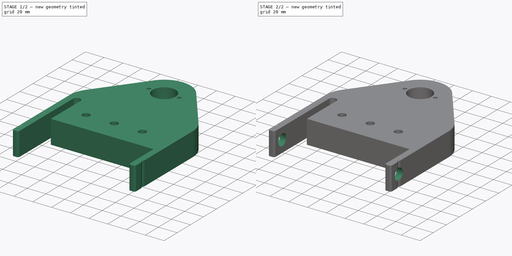
[diagram: build sequence overview — one tinted view per stage of 2, left to right]
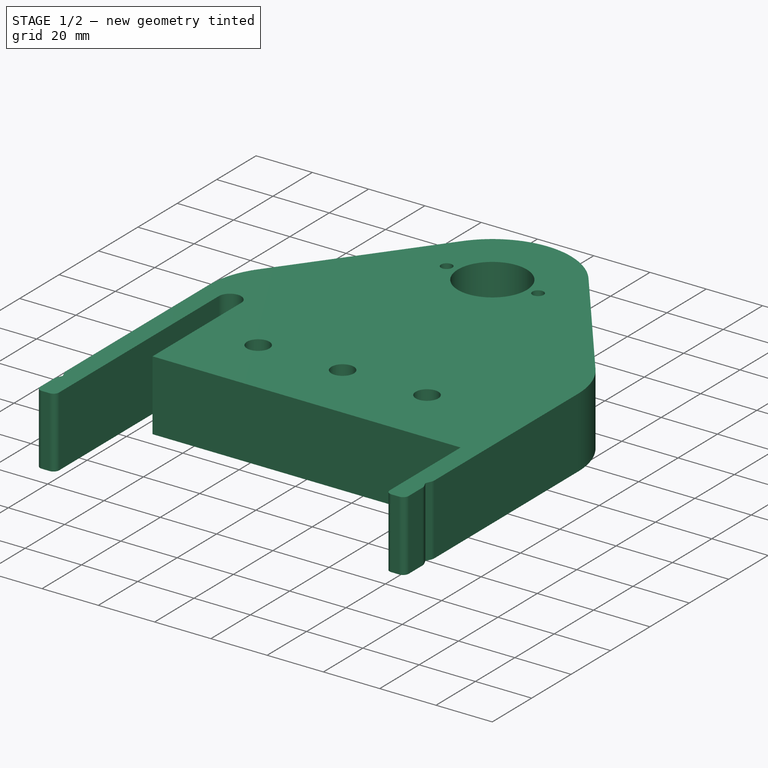
[diagram: stage 1 of 2 — iso view after this stage's code; geometry added in this stage tinted green]
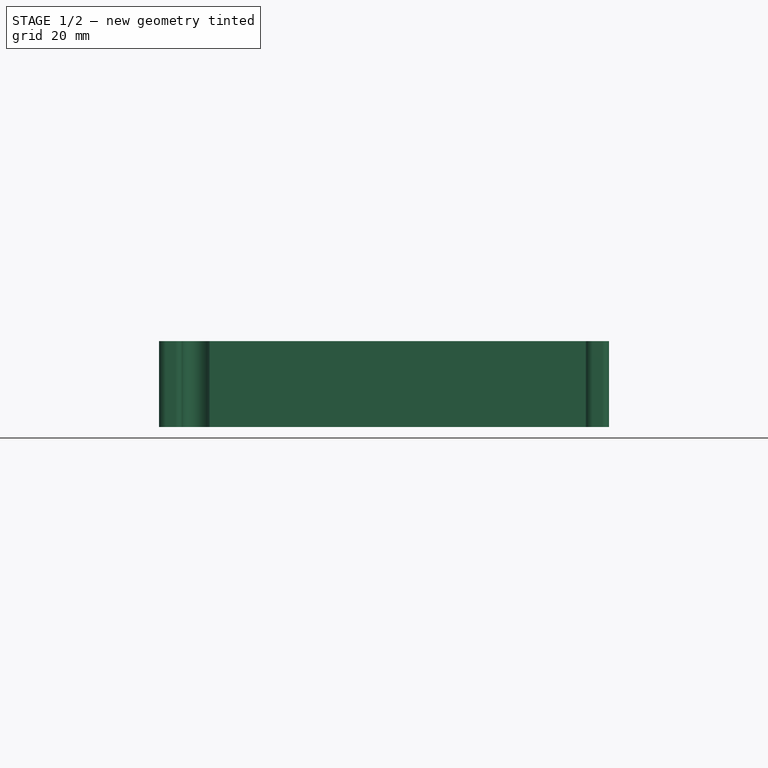
[diagram: stage 1 of 2 — front view after this stage's code; geometry added in this stage tinted green]
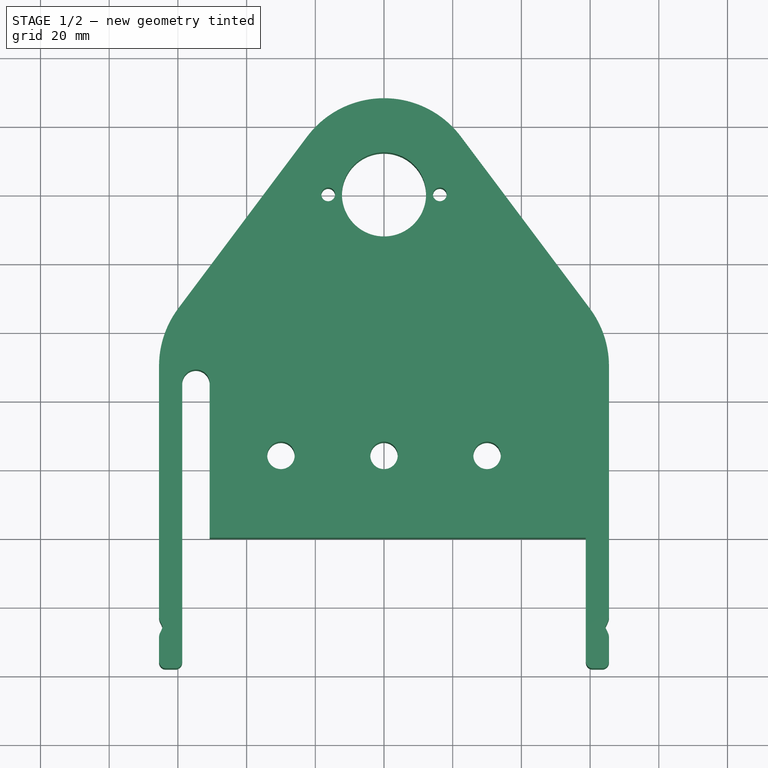
[diagram: stage 1 of 2 — top view after this stage's code; geometry added in this stage tinted green]
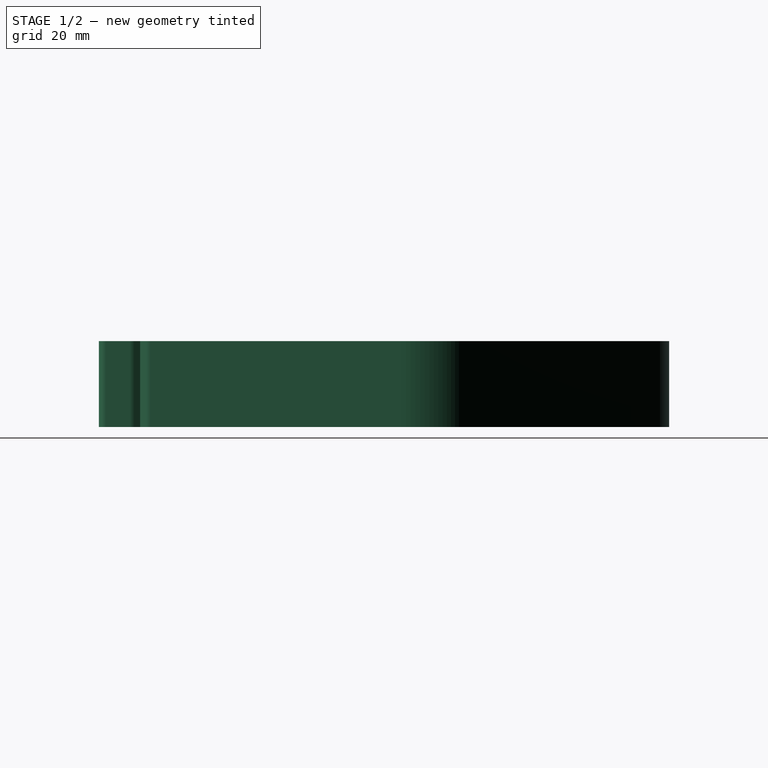
[diagram: stage 1 of 2 — right view after this stage's code; geometry added in this stage tinted green]
FCSTD DOCUMENT  (FreeCAD 0.19R24267 +99 (Git))
Label: V2 Centre steady
License: All rights reserved
LicenseURL: http://en.wikipedia.org/wiki/All_rights_reserved
objects: Sketcher::SketchObject×2, PartDesign::Pad×1, PartDesign::Pocket×1, PartDesign::Body×1
note: 7 computed .brp shape members not serialized (recipe doc carries the construction recipe); baked Part::Feature solids carry a one-line shape summary decoded from their .brp

FEATURE [Sketcher::SketchObject] Sketch
  FullyConstrained = true
  MapMode = 5
  Support = -> [XY_Plane]
  sketch-geometry (56):
    g0: LineSegment StartX=-50.75 StartY=0 StartZ=0 EndX=58.75 EndY=0 EndZ=0
    g1: Circle CenterX=0 CenterY=100 CenterZ=0 NormalX=0 NormalY=0 NormalZ=1 AngleXU=0 Radius=12.25
    g2: LineSegment StartX=-65.5 StartY=0 StartZ=0 EndX=-65.5 EndY=-23 EndZ=0
    g3: LineSegment StartX=65.5 StartY=0 StartZ=0 EndX=65.5 EndY=-23 EndZ=0
    g4: LineSegment StartX=-63.5 StartY=-38 StartZ=0 EndX=-60.75 EndY=-38 EndZ=0
    g5: LineSegment StartX=-58.75 StartY=0 StartZ=0 EndX=-58.75 EndY=-36 EndZ=0
    g6: LineSegment StartX=63.5 StartY=-38 StartZ=0 EndX=60.75 EndY=-38 EndZ=0
    g7: LineSegment StartX=58.75 StartY=0 StartZ=0 EndX=58.75 EndY=-36 EndZ=0
    g8: LineSegment StartX=-22.4 StartY=116.8 StartZ=0 EndX=-59.9 EndY=66.8 EndZ=0
    g9: LineSegment StartX=22.4 StartY=116.8 StartZ=0 EndX=59.9 EndY=66.8 EndZ=0
    g10: LineSegment StartX=-60.75 StartY=-38 StartZ=0 EndX=60.75 EndY=-38 EndZ=0
    g11: LineSegment StartX=-65.5 StartY=0 StartZ=0 EndX=-65.5 EndY=50 EndZ=0
    g12: LineSegment StartX=65.5 StartY=50 StartZ=0 EndX=65.5 EndY=0 EndZ=0
    g13: LineSegment StartX=-58.75 StartY=0 StartZ=0 EndX=-58.75 EndY=45 EndZ=0
    g14: LineSegment StartX=-50.75 StartY=45 StartZ=0 EndX=-50.75 EndY=0 EndZ=0
    g15: ArcOfCircle CenterX=0 CenterY=100 CenterZ=0 NormalX=0 NormalY=0 NormalZ=1 AngleXU=0 Radius=28 StartAngle=0.643501 EndAngle=2.49809
    g16: ArcOfCircle CenterX=-37.5 CenterY=50 CenterZ=0 NormalX=0 NormalY=0 NormalZ=1 AngleXU=0 Radius=28 StartAngle=2.49809 EndAngle=3.14159
    g17: ArcOfCircle CenterX=37.5 CenterY=50 CenterZ=0 NormalX=0 NormalY=0 NormalZ=1 AngleXU=0 Radius=28 StartAngle=0 EndAngle=0.643501
    g18: ArcOfCircle CenterX=-60.75 CenterY=-36 CenterZ=0 NormalX=0 NormalY=0 NormalZ=1 AngleXU=0 Radius=2 StartAngle=4.71239 EndAngle=6.28319
    g19: ArcOfCircle CenterX=60.75 CenterY=-36 CenterZ=0 NormalX=0 NormalY=0 NormalZ=1 AngleXU=0 Radius=2 StartAngle=3.14159 EndAngle=4.71239
    g20: ArcOfCircle CenterX=-54.75 CenterY=45 CenterZ=0 NormalX=0 NormalY=0 NormalZ=1 AngleXU=0 Radius=4 StartAngle=4e-16 EndAngle=3.14159
    g21: LineSegment StartX=-64.4112 StartY=-26 StartZ=0 EndX=64.4112 EndY=-26 EndZ=0
    g22: LineSegment StartX=-65.5 StartY=-29 StartZ=0 EndX=-65.5 EndY=-36 EndZ=0
    g23: LineSegment StartX=65.5 StartY=-29 StartZ=0 EndX=65.5 EndY=-36 EndZ=0
    g24: LineSegment StartX=-65.2189 StartY=-27.7321 StartZ=0 EndX=-64.4112 EndY=-26 EndZ=0
    g25: LineSegment StartX=-65.2189 StartY=-24.2679 StartZ=0 EndX=-64.4112 EndY=-26 EndZ=0
    g26: LineSegment StartX=65.2189 StartY=-24.2679 StartZ=0 EndX=64.4112 EndY=-26 EndZ=0
    g27: LineSegment StartX=65.2189 StartY=-27.7321 StartZ=0 EndX=64.4112 EndY=-26 EndZ=0
    g28: ArcOfCircle CenterX=-62.5 CenterY=-23 CenterZ=0 NormalX=0 NormalY=0 NormalZ=1 AngleXU=0 Radius=3 StartAngle=3.14159 EndAngle=3.57792
    g29: ArcOfCircle CenterX=-62.5 CenterY=-29 CenterZ=0 NormalX=0 NormalY=0 NormalZ=1 AngleXU=0 Radius=3 StartAngle=2.70526 EndAngle=3.14159
    g30: ArcOfCircle CenterX=62.5 CenterY=-23 CenterZ=0 NormalX=0 NormalY=0 NormalZ=1 AngleXU=0 Radius=3 StartAngle=5.84685 EndAngle=6.28319
    g31: ArcOfCircle CenterX=62.5 CenterY=-29 CenterZ=0 NormalX=0 NormalY=0 NormalZ=1 AngleXU=0 Radius=3 StartAngle=0 EndAngle=0.436332
    g32: ArcOfCircle CenterX=-63.5 CenterY=-36 CenterZ=0 NormalX=0 NormalY=0 NormalZ=1 AngleXU=0 Radius=2 StartAngle=3.14159 EndAngle=4.71239
    g33: ArcOfCircle CenterX=63.5 CenterY=-36 CenterZ=0 NormalX=0 NormalY=0 NormalZ=1 AngleXU=0 Radius=2 StartAngle=4.71239 EndAngle=6.28319
    g34: Circle CenterX=0 CenterY=100 CenterZ=0 NormalX=0 NormalY=0 NormalZ=1 AngleXU=0 Radius=20.25
    g35: Circle CenterX=16.25 CenterY=100 CenterZ=0 NormalX=0 NormalY=0 NormalZ=1 AngleXU=0 Radius=2
    g36: Circle CenterX=-16.25 CenterY=100 CenterZ=0 NormalX=0 NormalY=0 NormalZ=1 AngleXU=0 Radius=2
    g37: LineSegment StartX=0 StartY=100 StartZ=0 EndX=20.25 EndY=100 EndZ=0
    g38: LineSegment StartX=0 StartY=100 StartZ=0 EndX=-20.25 EndY=100 EndZ=0
    g39: GeomPoint X=58 Y=0 Z=0
    g40: GeomPoint X=-58 Y=0 Z=0
    g41: LineSegment StartX=-16.25 StartY=102 StartZ=0 EndX=-16.25 EndY=98 EndZ=0
    g42: LineSegment StartX=-18.25 StartY=100 StartZ=0 EndX=-14.25 EndY=100 EndZ=0
    g43: LineSegment StartX=14.25 StartY=100 StartZ=0 EndX=18.25 EndY=100 EndZ=0
    g44: LineSegment StartX=16.25 StartY=102 StartZ=0 EndX=16.25 EndY=98 EndZ=0
    g45: GeomPoint X=0 Y=-50 Z=0
    g46: Circle CenterX=0 CenterY=24 CenterZ=0 NormalX=0 NormalY=0 NormalZ=1 AngleXU=0 Radius=4
    g47: Circle CenterX=30 CenterY=24 CenterZ=0 NormalX=0 NormalY=0 NormalZ=1 AngleXU=0 Radius=4
    g48: Circle CenterX=-30 CenterY=24 CenterZ=0 NormalX=0 NormalY=0 NormalZ=1 AngleXU=0 Radius=4
    g49: LineSegment StartX=-30 StartY=24 StartZ=0 EndX=30 EndY=24 EndZ=0
    g50: LineSegment StartX=-30 StartY=28 StartZ=0 EndX=-30 EndY=20 EndZ=0
    g51: LineSegment StartX=-34 StartY=24 StartZ=0 EndX=-26 EndY=24 EndZ=0
    g52: LineSegment StartX=-4 StartY=24 StartZ=0 EndX=4 EndY=24 EndZ=0
    g53: LineSegment StartX=0 StartY=28 StartZ=0 EndX=0 EndY=20 EndZ=0
    g54: LineSegment StartX=30 StartY=28 StartZ=0 EndX=30 EndY=20 EndZ=0
    g55: LineSegment StartX=26 StartY=24 StartZ=0 EndX=34 EndY=24 EndZ=0
  constraints (154):
    c: PointOnObject(g1,g-2)
    c: PointOnObject(g2,g0)
    c: Vertical(g2)
    c: PointOnObject(g3,g0)
    c: Horizontal(g4)
    c: PointOnObject(g5,g-1)
    c: PointOnObject(g7,g-1)
    c: Vertical(g7)
    c: Vertical(g5)
    c: Horizontal(g10)
    c: Coincident(g11,g2)
    c: Coincident(g12,g3)
    c: Vertical(g12)
    c: Vertical(g11)
    c: DistanceY(g-1,g1) = 100
    c: Equal(g12,g11)
    c: Coincident(g13,g5)
    c: Vertical(g13)
    c: Vertical(g14)
    c: Tangent(g8,g15) = -1.5708
    c: Tangent(g9,g15) = 1.5708
    c: Coincident(g15,g1)
    c: Tangent(g8,g16) = -1.5708
    c: Tangent(g11,g16) = 1.5708
    c: Tangent(g9,g17) = 1.5708
    c: Tangent(g12,g17) = 1.5708
    c: Equal(g16,g17)
    c: Equal(g16,g15)
    c: Tangent(g4,g18) = -1.5708
    c: Tangent(g5,g18) = 1.5708
    c: Tangent(g7,g19) = -1.5708
    c: Tangent(g6,g19) = 1.5708
    c: Coincident(g10,g6)
    c: Coincident(g10,g4)
    c: Equal(g18,g19)
    c: Tangent(g20,g14) = 1.5708
    c: Tangent(g20,g13) = 1.5708
    c: DistanceY(g2,g11) = 50
    c: Tangent(g2,g22)
    c: Tangent(g3,g23)
    c: Symmetric(g21,g21,g-2)
    c: Coincident(g0,g7)
    c: Coincident(g24,g21)
    c: Coincident(g25,g24)
    c: Coincident(g26,g21)
    c: Coincident(g27,g26)
    c: Equal(g27,g24)
    c: Equal(g24,g25)
    c: Angle(g25,g24) = 2.26893
    c: Equal(g27,g26)
    c: Symmetric(g2,g3,g-1)
    c: Tangent(g2,g28) = -1.5708
    c: Tangent(g25,g28) = -1.5708
    c: Tangent(g24,g29) = 1.5708
    c: Tangent(g22,g29) = -1.5708
    c: Tangent(g3,g30) = 1.5708
    c: Tangent(g26,g30) = 1.5708
    c: Tangent(g27,g31) = -1.5708
    c: Tangent(g23,g31) = 1.5708
    c: Equal(g30,g31)
    c: Equal(g31,g28)
    c: Equal(g28,g29)
    c: Radius(g28) = 3
    c: DistanceY(g22,g2) = 6
    c: Coincident(g14,g0)
    c: Tangent(g22,g32) = -1.5708
    c: Tangent(g4,g32) = -1.5708
    c: Tangent(g23,g33) = 1.5708
    c: Tangent(g6,g33) = 1.5708
    c: Equal(g32,g18)
    c: Equal(g19,g33)
    c: Horizontal(g6)
    c: Vertical(g3)
    c: Radius(g18) = 2
    c: Coincident(g34,g1)
    c: Coincident(g37,g1)
    c: PointOnObject(g37,g34)
    c: Horizontal(g37)
    c: Coincident(g38,g1)
    c: PointOnObject(g38,g34)
    c: Horizontal(g38)
    c: PointOnObject(g35,g37)
    c: DistanceX(g36,g35) = 32.5
    c: Symmetric(g36,g35,g-2)
    c: Equal(g36,g35)
    c: PointOnObject(g39,g0)
    c: DistanceX(g39,g0) = 0.75
    c: DistanceX(g-1,g39) = 58
    c: DistanceX(g39,g23) = 7.5
    c: PointOnObject(g40,g-1)
    c: DistanceX(g5,g40) = 0.75
    c: DistanceX(g40,g-1) = 58
    c: DistanceX(g22,g40) = 7.5
    c: DistanceY(g2,g20) = 45
    c: Diameter(g34) = 40.5
    c: Diameter(g36) = 4
    c: Diameter(g1) = 24.5
    c: PointOnObject(g41,g36)
    c: PointOnObject(g41,g36)
    c: Vertical(g41)
    c: PointOnObject(g42,g36)
    c: PointOnObject(g42,g36)
    c: Horizontal(g42)
    c: PointOnObject(g43,g35)
    c: PointOnObject(g43,g35)
    c: PointOnObject(g44,g35)
    c: PointOnObject(g44,g35)
    c: Horizontal(g43)
    c: PointOnObject(g35,g43)
    c: Vertical(g44)
    c: PointOnObject(g35,g44)
    c: PointOnObject(g36,g42)
    c: PointOnObject(g36,g41)
    c: Diameter(g20) = 8
    c: PointOnObject(g45,g-2)
    c: DistanceY(g45,g-1) = 50
    c: DistanceY(g45,g4) = 12
    c: DistanceY(g45,g24) = 24
    c: Diameter(g15) = 56
    c: DistanceX(g22,g23) = 131
    c: PointOnObject(g46,g-2)
    c: Coincident(g49,g48)
    c: Coincident(g49,g47)
    c: Equal(g47,g46)
    c: Equal(g46,g48)
    c: Horizontal(g49)
    c: DistanceX(g49,g49) = 60
    c: Diameter(g48) = 8
    c: DistanceY(g46,g1) = 76
    c: Symmetric(g48,g47,g46)
    c: PointOnObject(g50,g48)
    c: PointOnObject(g50,g48)
    c: PointOnObject(g51,g48)
    c: PointOnObject(g51,g48)
    c: Horizontal(g51)
    c: PointOnObject(g52,g46)
    c: PointOnObject(g52,g46)
    c: Horizontal(g52)
    c: PointOnObject(g53,g46)
    c: PointOnObject(g53,g46)
    c: Vertical(g53)
    c: PointOnObject(g54,g47)
    c: PointOnObject(g54,g47)
    c: Vertical(g54)
    c: PointOnObject(g55,g47)
    c: Horizontal(g55)
    c: Vertical(g50)
    c: PointOnObject(g48,g51)
    c: PointOnObject(g48,g50)
    c: PointOnObject(g46,g53)
    c: PointOnObject(g46,g52)
    c: PointOnObject(g47,g55)
    c: PointOnObject(g47,g54)
    c: PointOnObject(g55,g47)
FEATURE [PartDesign::Pad] Pad  label="Plate thickness"
  Direction = (1,1,1)
  Length = 25
  Length2 = 100
  Midplane = true
  Profile = -> Sketch
  Type = 0
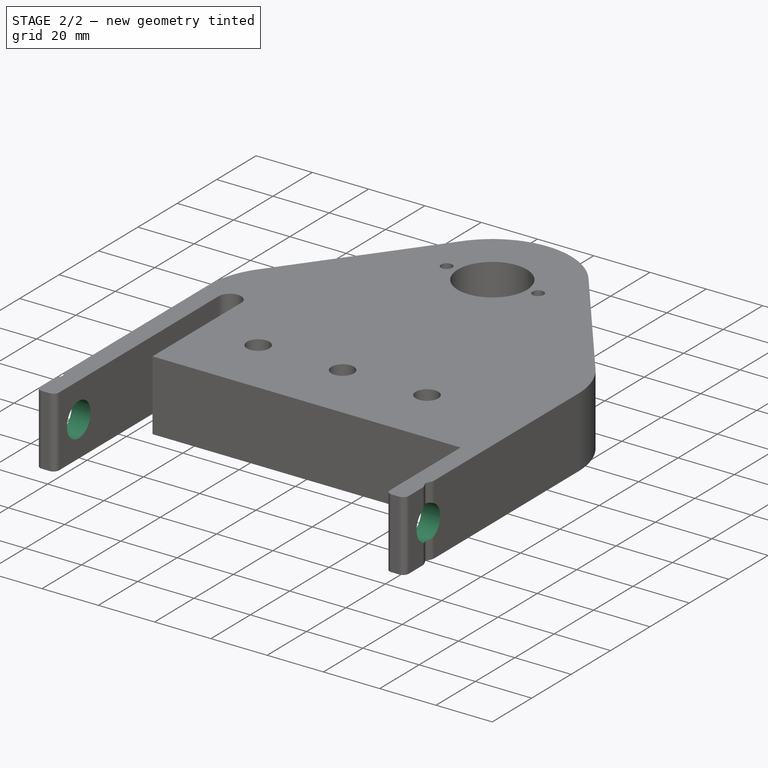
[diagram: stage 2 of 2 — iso view after this stage's code; geometry added in this stage tinted green]
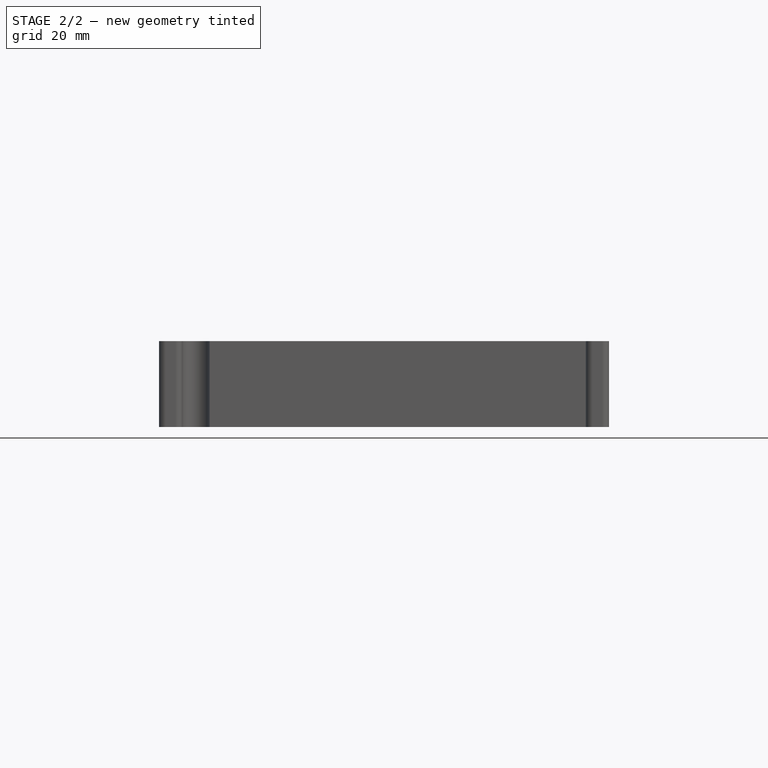
[diagram: stage 2 of 2 — front view after this stage's code; geometry added in this stage tinted green]
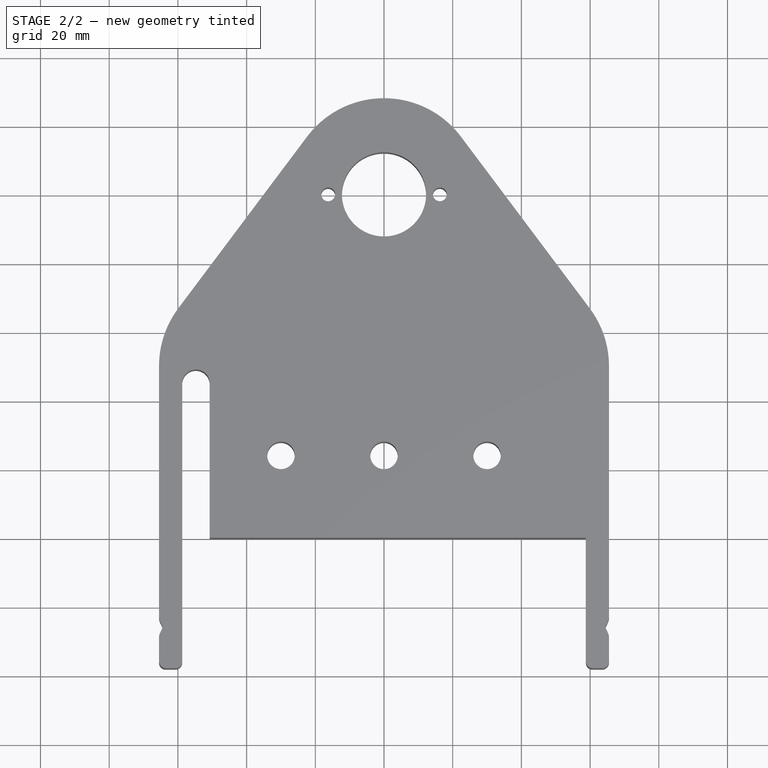
[diagram: stage 2 of 2 — top view after this stage's code; geometry added in this stage tinted green]
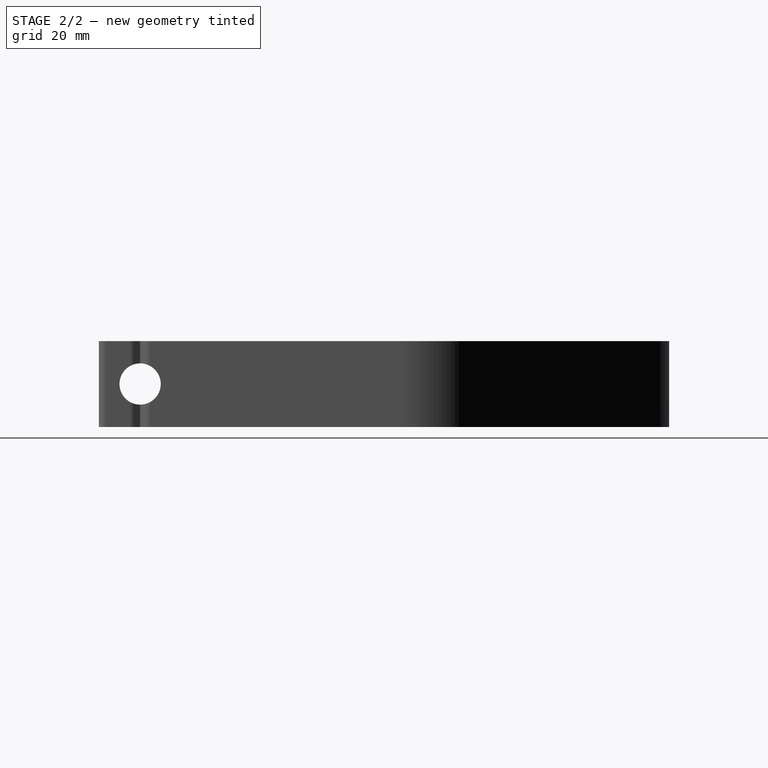
[diagram: stage 2 of 2 — right view after this stage's code; geometry added in this stage tinted green]
FEATURE [Sketcher::SketchObject] Sketch001  label="Mounting hole sketch"
  FullyConstrained = true
  MapMode = 5
  Placement = pos=(0,0,0) rot=(0.57735,0.57735,0.57735;2.0944rad)
  Support = -> [YZ_Plane]
  sketch-geometry (2):
    g0: Circle CenterX=-26 CenterY=0 CenterZ=0 NormalX=0 NormalY=0 NormalZ=1 AngleXU=0 Radius=6
    g1: GeomPoint X=-50 Y=0 Z=0
  constraints (5):
    c: PointOnObject(g0,g-1)
    c: Radius(g0) = 6
    c: PointOnObject(g1,g-1)
    c: DistanceX(g1,g-1) = 50
    c: DistanceX(g1,g0) = 24
FEATURE [PartDesign::Pocket] Pocket  label="Edge mounting holes to drill"
  BaseFeature = -> Pad
  Length = 5
  Length2 = 100
  Midplane = true
  Profile = -> Sketch001
  Type = 1
FEATURE [PartDesign::Body] Body
  Group = -> [Sketch,Pad,Sketch001,Pocket]
  Origin = -> Origin
  Tip = -> Pocket
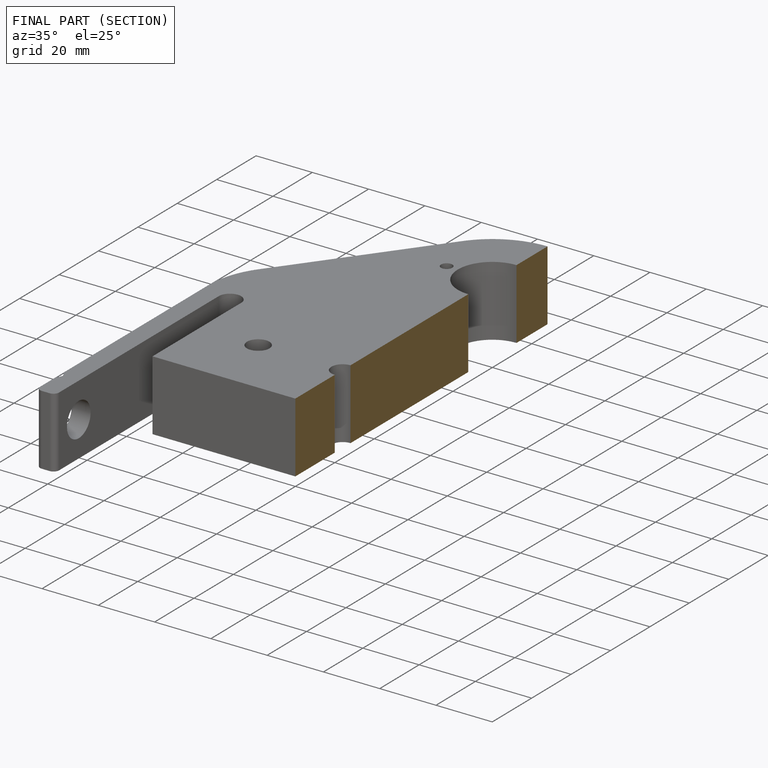
[diagram: finished part — half-section view (interior)]
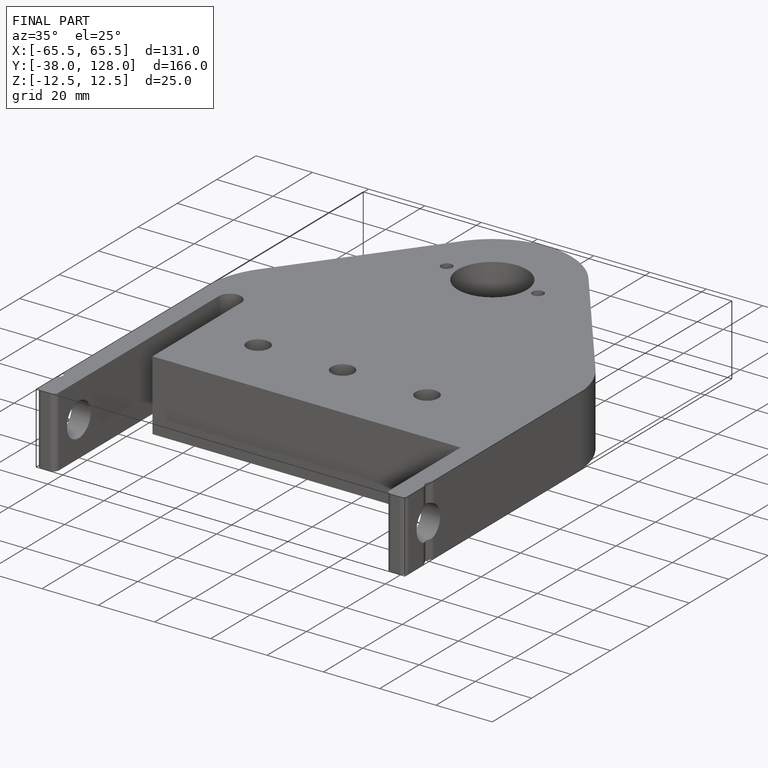
[diagram: finished part — iso view with bounding-box wireframe]
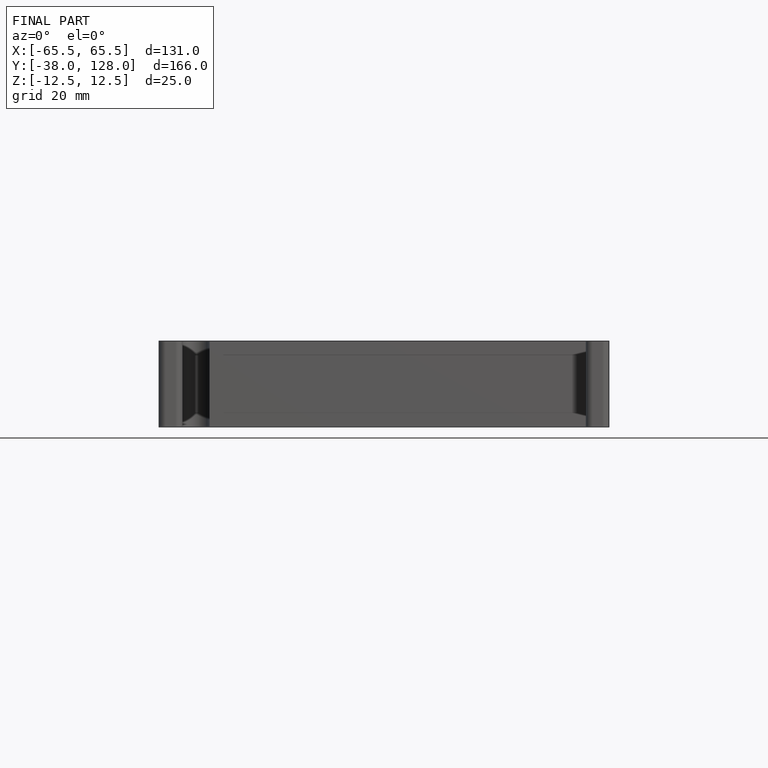
[diagram: finished part — front view with bounding-box wireframe]
